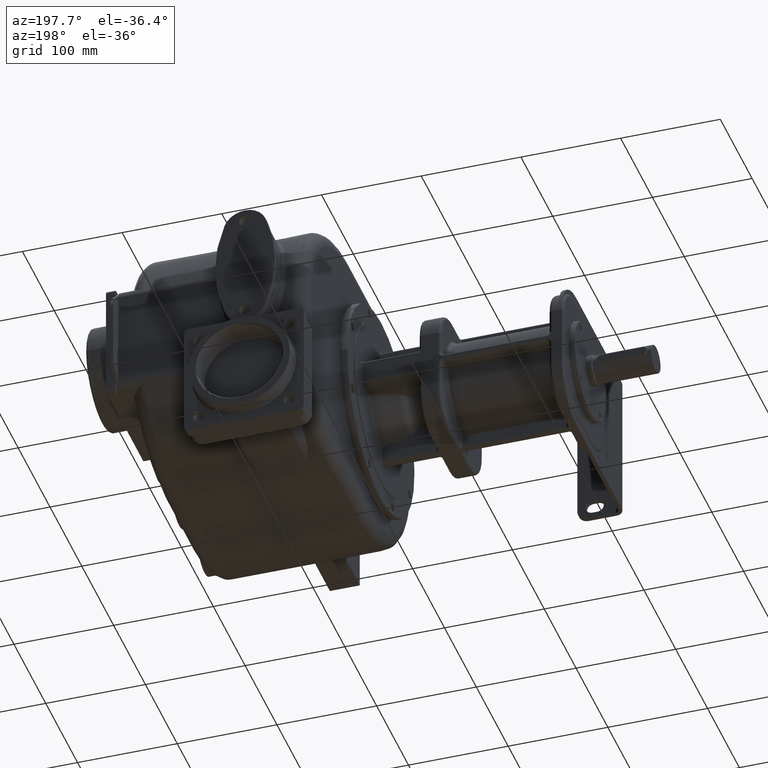
[diagram: clean part render]
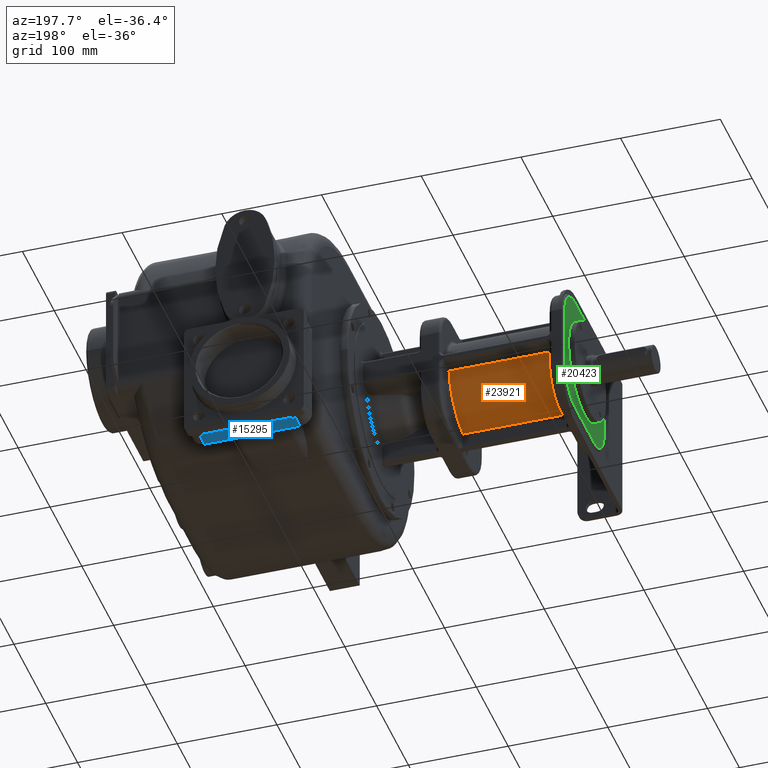
[diagram: same view with three faces highlighted in distinct colors, each labeled with its STEP entity id]
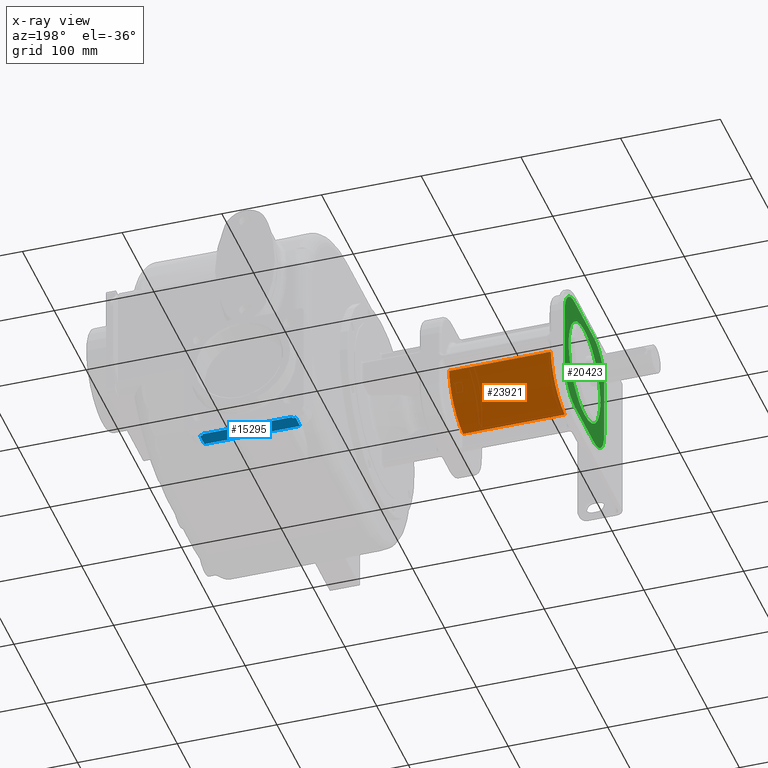
[diagram: x-ray of the same camera — body ghosted, the three highlighted faces saturated]
A machine part, auxiliary view with three faces highlighted in distinct colors.
The next image is the same camera in x-ray (body ghosted, the three faces saturated) — at least one of them is partly hidden behind the body in this view.
Their STEP definitions:

[orange] entity #23921 — the highlighted cylindrical surface (partial cylindrical patch) has radius 50 mm, axis along (-1, 0, 0).
#8261=CARTESIAN_POINT('',(-1.625E2,1.372884615390E2,-4.971953514554E1));
#8280=CARTESIAN_POINT('',(-1.625E2,1.32E2,0.E0));
#8281=DIRECTION('',(-1.E0,0.E0,0.E0));
#8282=DIRECTION('',(0.E0,9.924510366581E-1,-1.226415094340E-1));
#8283=AXIS2_PLACEMENT_3D('',#8280,#8281,#8282);
#8300=DIRECTION('',(1.E0,-3.728259531165E-13,3.501094838879E-12));
#8301=VECTOR('',#8300,1.02E2);
#8302=CARTESIAN_POINT('',(-2.645E2,1.372884615391E2,-4.971953514590E1));
#8303=LINE('',#8302,#8301);
#8304=DIRECTION('',(-1.E0,0.E0,0.E0));
#8305=VECTOR('',#8304,1.02E2);
#8306=CARTESIAN_POINT('',(-1.625E2,1.816225518329E2,-6.132075471698E0));
#8307=LINE('',#8306,#8305);
#8327=CARTESIAN_POINT('',(-2.645E2,1.32E2,0.E0));
#8328=DIRECTION('',(1.E0,0.E0,0.E0));
#8329=DIRECTION('',(0.E0,1.057692307692E-1,-9.943907028037E-1));
#8330=AXIS2_PLACEMENT_3D('',#8327,#8328,#8329);
#11456=CARTESIAN_POINT('',(-2.645E2,1.816225518329E2,-6.132075471698E0));
#11457=VERTEX_POINT('',#11456);
#11458=CARTESIAN_POINT('',(-1.625E2,1.816225518329E2,-6.132075471698E0));
#11459=VERTEX_POINT('',#11458);
#11570=VERTEX_POINT('',#8261);
#11571=CARTESIAN_POINT('',(-2.645E2,1.372884615391E2,-4.971953514590E1));
#11572=VERTEX_POINT('',#11571);
#23908=CARTESIAN_POINT('',(-1.376E2,1.32E2,0.E0));
#23909=DIRECTION('',(-1.E0,0.E0,0.E0));
#23910=DIRECTION('',(0.E0,-1.E0,0.E0));
#23911=AXIS2_PLACEMENT_3D('',#23908,#23909,#23910);
#23912=CYLINDRICAL_SURFACE('',#23911,5.E1);
#23914=ORIENTED_EDGE('',*,*,#23913,.T.);
#23915=ORIENTED_EDGE('',*,*,#23864,.F.);
#23916=ORIENTED_EDGE('',*,*,#23899,.T.);
#23918=ORIENTED_EDGE('',*,*,#23917,.F.);
#23919=EDGE_LOOP('',(#23914,#23915,#23916,#23918));
#23920=FACE_OUTER_BOUND('',#23919,.F.);
#23921=ADVANCED_FACE('',(#23920),#23912,.T.);
#8284=CIRCLE('',#8283,5.E1);
#8331=CIRCLE('',#8330,5.E1);
#23864=EDGE_CURVE('',#11459,#11570,#8284,.T.);
#23899=EDGE_CURVE('',#11459,#11457,#8307,.T.);
#23913=EDGE_CURVE('',#11572,#11570,#8303,.T.);
#23917=EDGE_CURVE('',#11572,#11457,#8331,.T.);

[blue] entity #15295 — the highlighted planar face has unit normal (0, 0, -1).
#2094=DIRECTION('',(1.E0,0.E0,0.E0));
#2095=VECTOR('',#2094,3.E0);
#2096=CARTESIAN_POINT('',(-6.3E1,3.52E2,-1.59E2));
#2097=LINE('',#2096,#2095);
#2098=DIRECTION('',(0.E0,-1.E0,0.E0));
#2099=VECTOR('',#2098,2.E0);
#2100=CARTESIAN_POINT('',(3.E1,3.54E2,-1.59E2));
#2101=LINE('',#2100,#2099);
#2102=DIRECTION('',(0.E0,-1.E0,0.E0));
#2103=VECTOR('',#2102,2.E0);
#2104=CARTESIAN_POINT('',(-6.E1,3.54E2,-1.59E2));
#2105=LINE('',#2104,#2103);
#2106=DIRECTION('',(0.E0,1.E0,0.E0));
#2107=VECTOR('',#2106,1.4E1);
#2108=CARTESIAN_POINT('',(-6.3E1,3.38E2,-1.59E2));
#2109=LINE('',#2108,#2107);
#2110=DIRECTION('',(0.E0,1.E0,0.E0));
#2111=VECTOR('',#2110,1.4E1);
#2112=CARTESIAN_POINT('',(3.3E1,3.38E2,-1.59E2));
#2113=LINE('',#2112,#2111);
#2119=DIRECTION('',(1.E0,0.E0,0.E0));
#2120=VECTOR('',#2119,3.E0);
#2121=CARTESIAN_POINT('',(3.E1,3.52E2,-1.59E2));
#2122=LINE('',#2121,#2120);
#2198=DIRECTION('',(-1.E0,0.E0,0.E0));
#2199=VECTOR('',#2198,9.E1);
#2200=CARTESIAN_POINT('',(3.E1,3.54E2,-1.59E2));
#2201=LINE('',#2200,#2199);
#2750=DIRECTION('',(1.E0,0.E0,0.E0));
#2751=VECTOR('',#2750,9.6E1);
#2752=CARTESIAN_POINT('',(-6.3E1,3.38E2,-1.59E2));
#2753=LINE('',#2752,#2751);
#10248=CARTESIAN_POINT('',(-6.3E1,3.52E2,-1.59E2));
#10250=VERTEX_POINT('',#10248);
#10254=CARTESIAN_POINT('',(-6.3E1,3.38E2,-1.59E2));
#10255=VERTEX_POINT('',#10254);
#10265=CARTESIAN_POINT('',(3.3E1,3.52E2,-1.59E2));
#10267=VERTEX_POINT('',#10265);
#10268=CARTESIAN_POINT('',(3.3E1,3.38E2,-1.59E2));
#10269=VERTEX_POINT('',#10268);
#10973=CARTESIAN_POINT('',(3.E1,3.54E2,-1.59E2));
#10975=VERTEX_POINT('',#10973);
#10980=CARTESIAN_POINT('',(-6.E1,3.54E2,-1.59E2));
#10982=VERTEX_POINT('',#10980);
#11004=CARTESIAN_POINT('',(3.E1,3.52E2,-1.59E2));
#11006=VERTEX_POINT('',#11004);
#11013=CARTESIAN_POINT('',(-6.E1,3.52E2,-1.59E2));
#11015=VERTEX_POINT('',#11013);
#15274=CARTESIAN_POINT('',(-7.5E1,3.52E2,-1.59E2));
#15275=DIRECTION('',(0.E0,0.E0,-1.E0));
#15276=DIRECTION('',(1.E0,0.E0,0.E0));
#15277=AXIS2_PLACEMENT_3D('',#15274,#15275,#15276);
#15278=PLANE('',#15277);
#15280=ORIENTED_EDGE('',*,*,#15279,.F.);
#15282=ORIENTED_EDGE('',*,*,#15281,.F.);
#15284=ORIENTED_EDGE('',*,*,#15283,.T.);
#15285=ORIENTED_EDGE('',*,*,#15266,.T.);
#15286=ORIENTED_EDGE('',*,*,#15255,.F.);
#15288=ORIENTED_EDGE('',*,*,#15287,.F.);
#15290=ORIENTED_EDGE('',*,*,#15289,.T.);
#15292=ORIENTED_EDGE('',*,*,#15291,.T.);
#15293=EDGE_LOOP('',(#15280,#15282,#15284,#15285,#15286,#15288,#15290,#15292));
#15294=FACE_OUTER_BOUND('',#15293,.F.);
#15295=ADVANCED_FACE('',(#15294),#15278,.T.);
#15255=EDGE_CURVE('',#10250,#11015,#2097,.T.);
#15266=EDGE_CURVE('',#10982,#11015,#2105,.T.);
#15279=EDGE_CURVE('',#11006,#10267,#2122,.T.);
#15281=EDGE_CURVE('',#10975,#11006,#2101,.T.);
#15283=EDGE_CURVE('',#10975,#10982,#2201,.T.);
#15287=EDGE_CURVE('',#10255,#10250,#2109,.T.);
#15289=EDGE_CURVE('',#10255,#10269,#2753,.T.);
#15291=EDGE_CURVE('',#10269,#10267,#2113,.T.);

[green] entity #20423 — the highlighted planar face has unit normal (-1, 0, 0).
#6141=CARTESIAN_POINT('',(-2.825E2,1.02E2,3.E1));
#6142=DIRECTION('',(-1.E0,0.E0,0.E0));
#6143=DIRECTION('',(0.E0,-1.E0,0.E0));
#6144=AXIS2_PLACEMENT_3D('',#6141,#6142,#6143);
#6146=DIRECTION('',(0.E0,0.E0,1.E0));
#6147=VECTOR('',#6146,6.E1);
#6148=CARTESIAN_POINT('',(-2.825E2,7.E1,-3.E1));
#6149=LINE('',#6148,#6147);
#6150=CARTESIAN_POINT('',(-2.825E2,1.02E2,-3.E1));
#6151=DIRECTION('',(-1.E0,0.E0,0.E0));
#6152=DIRECTION('',(0.E0,0.E0,-1.E0));
#6153=AXIS2_PLACEMENT_3D('',#6150,#6151,#6152);
#6155=DIRECTION('',(0.E0,-1.E0,0.E0));
#6156=VECTOR('',#6155,6.E1);
#6157=CARTESIAN_POINT('',(-2.825E2,1.62E2,-6.2E1));
#6158=LINE('',#6157,#6156);
#6159=CARTESIAN_POINT('',(-2.825E2,1.62E2,-3.E1));
#6160=DIRECTION('',(-1.E0,0.E0,0.E0));
#6161=DIRECTION('',(0.E0,1.E0,0.E0));
#6162=AXIS2_PLACEMENT_3D('',#6159,#6160,#6161);
#6164=DIRECTION('',(0.E0,0.E0,-1.E0));
#6165=VECTOR('',#6164,6.E1);
#6166=CARTESIAN_POINT('',(-2.825E2,1.94E2,3.E1));
#6167=LINE('',#6166,#6165);
#6168=CARTESIAN_POINT('',(-2.825E2,1.62E2,3.E1));
#6169=DIRECTION('',(-1.E0,0.E0,0.E0));
#6170=DIRECTION('',(0.E0,0.E0,1.E0));
#6171=AXIS2_PLACEMENT_3D('',#6168,#6169,#6170);
#6173=DIRECTION('',(0.E0,1.E0,0.E0));
#6174=VECTOR('',#6173,6.E1);
#6175=CARTESIAN_POINT('',(-2.825E2,1.02E2,6.2E1));
#6176=LINE('',#6175,#6174);
#6177=CARTESIAN_POINT('',(-2.825E2,1.32E2,0.E0));
#6178=DIRECTION('',(-1.E0,0.E0,0.E0));
#6179=DIRECTION('',(0.E0,0.E0,-1.E0));
#6180=AXIS2_PLACEMENT_3D('',#6177,#6178,#6179);
#6182=CARTESIAN_POINT('',(-2.825E2,1.32E2,0.E0));
#6183=DIRECTION('',(-1.E0,0.E0,0.E0));
#6184=DIRECTION('',(0.E0,0.E0,1.E0));
#6185=AXIS2_PLACEMENT_3D('',#6182,#6183,#6184);
#11392=CARTESIAN_POINT('',(-2.825E2,7.E1,3.E1));
#11393=CARTESIAN_POINT('',(-2.825E2,1.02E2,6.2E1));
#11394=VERTEX_POINT('',#11392);
#11395=VERTEX_POINT('',#11393);
#11396=CARTESIAN_POINT('',(-2.825E2,1.62E2,6.2E1));
#11397=VERTEX_POINT('',#11396);
#11398=CARTESIAN_POINT('',(-2.825E2,1.94E2,3.E1));
#11399=VERTEX_POINT('',#11398);
#11400=CARTESIAN_POINT('',(-2.825E2,1.94E2,-3.E1));
#11401=VERTEX_POINT('',#11400);
#11402=CARTESIAN_POINT('',(-2.825E2,1.62E2,-6.2E1));
#11403=VERTEX_POINT('',#11402);
#11404=CARTESIAN_POINT('',(-2.825E2,1.02E2,-6.2E1));
#11405=VERTEX_POINT('',#11404);
#11406=CARTESIAN_POINT('',(-2.825E2,7.E1,-3.E1));
#11407=VERTEX_POINT('',#11406);
#11768=CARTESIAN_POINT('',(-2.825E2,1.32E2,-4.975E1));
#11769=CARTESIAN_POINT('',(-2.825E2,1.32E2,4.975E1));
#11770=VERTEX_POINT('',#11768);
#11771=VERTEX_POINT('',#11769);
#20402=CARTESIAN_POINT('',(-2.825E2,1.32E2,0.E0));
#20403=DIRECTION('',(-1.E0,0.E0,0.E0));
#20404=DIRECTION('',(0.E0,-1.E0,0.E0));
#20405=AXIS2_PLACEMENT_3D('',#20402,#20403,#20404);
#20406=PLANE('',#20405);
#20407=ORIENTED_EDGE('',*,*,#20396,.F.);
#20408=ORIENTED_EDGE('',*,*,#20298,.F.);
#20409=ORIENTED_EDGE('',*,*,#20313,.F.);
#20410=ORIENTED_EDGE('',*,*,#20327,.F.);
#20411=ORIENTED_EDGE('',*,*,#20341,.F.);
#20412=ORIENTED_EDGE('',*,*,#20355,.F.);
#20413=ORIENTED_EDGE('',*,*,#20369,.F.);
#20414=ORIENTED_EDGE('',*,*,#20383,.F.);
#20415=EDGE_LOOP('',(#20407,#20408,#20409,#20410,#20411,#20412,#20413,#20414));
#20416=FACE_OUTER_BOUND('',#20415,.F.);
#20418=ORIENTED_EDGE('',*,*,#20417,.T.);
#20420=ORIENTED_EDGE('',*,*,#20419,.T.);
#20421=EDGE_LOOP('',(#20418,#20420));
#20422=FACE_BOUND('',#20421,.F.);
#20423=ADVANCED_FACE('',(#20416,#20422),#20406,.T.);
#6145=CIRCLE('',#6144,3.2E1);
#6154=CIRCLE('',#6153,3.2E1);
#6163=CIRCLE('',#6162,3.2E1);
#6172=CIRCLE('',#6171,3.2E1);
#6181=CIRCLE('',#6180,4.975E1);
#6186=CIRCLE('',#6185,4.975E1);
#20298=EDGE_CURVE('',#11407,#11394,#6149,.T.);
#20313=EDGE_CURVE('',#11405,#11407,#6154,.T.);
#20327=EDGE_CURVE('',#11403,#11405,#6158,.T.);
#20341=EDGE_CURVE('',#11401,#11403,#6163,.T.);
#20355=EDGE_CURVE('',#11399,#11401,#6167,.T.);
#20369=EDGE_CURVE('',#11397,#11399,#6172,.T.);
#20383=EDGE_CURVE('',#11395,#11397,#6176,.T.);
#20396=EDGE_CURVE('',#11394,#11395,#6145,.T.);
#20417=EDGE_CURVE('',#11770,#11771,#6181,.T.);
#20419=EDGE_CURVE('',#11771,#11770,#6186,.T.);